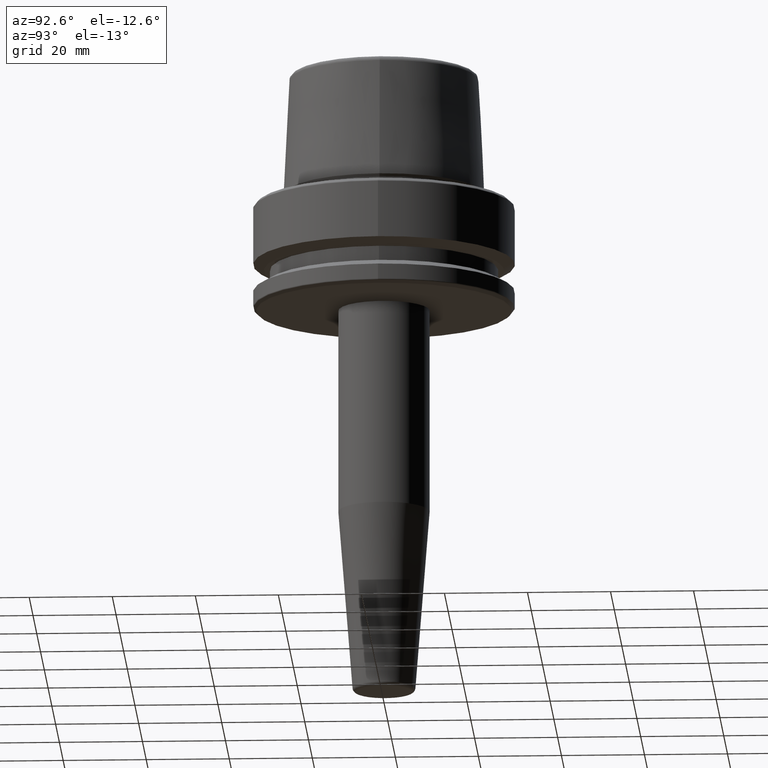
[diagram: clean part render]
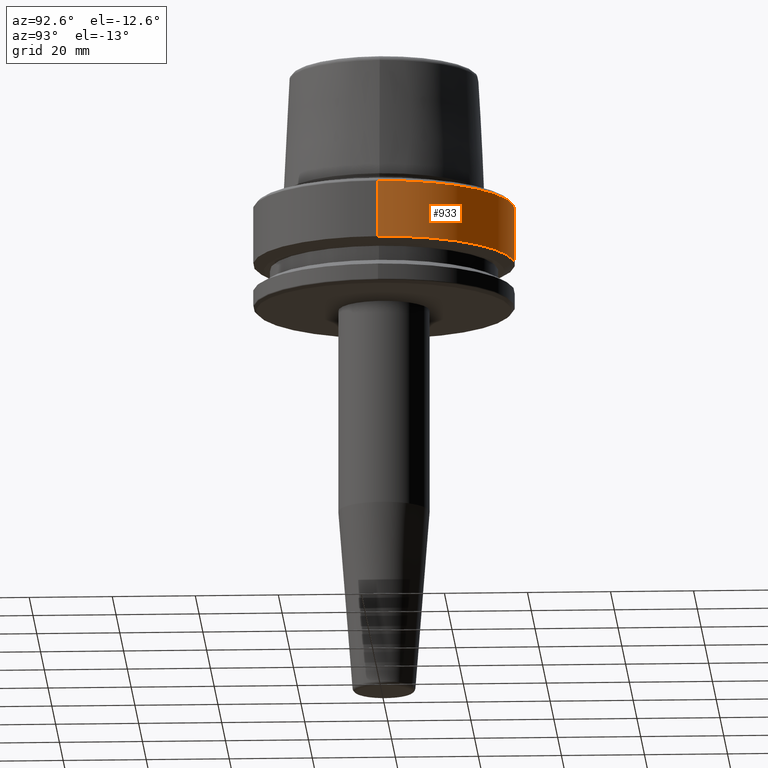
[diagram: same view with one face highlighted and labeled with its STEP entity id]
A machine part, auxiliary view. The second image highlights one B-rep face of the part: STEP entity #933.
In plain terms, the highlighted cylindrical surface (partial cylindrical patch) has radius 31.5 mm, axis along (-0, -0, 1).
Its self-contained STEP definition (entity closure, byte-faithful):
#53 = LINE ( 'NONE', #975, #1056 ) ;
#64 = ORIENTED_EDGE ( 'NONE', *, *, #943, .T. ) ;
#145 = CIRCLE ( 'NONE', #534, 31.50000000000000000 ) ;
#170 = CARTESIAN_POINT ( 'NONE',  ( -31.50000000000000000, 3.857637417314162700E-015, 78.96908074195309300 ) ) ;
#206 = CARTESIAN_POINT ( 'NONE',  ( 31.50000000000000000, 0.0000000000000000000, -0.9656854249492363700 ) ) ;
#215 = VERTEX_POINT ( 'NONE', #1192 ) ;
#268 = DIRECTION ( 'NONE',  ( -0.0000000000000000000, -0.0000000000000000000, 1.000000000000000000 ) ) ;
#297 = FACE_OUTER_BOUND ( 'NONE', #460, .T. ) ;
#385 = VERTEX_POINT ( 'NONE', #860 ) ;
#441 = CARTESIAN_POINT ( 'NONE',  ( 0.0000000000000000000, 0.0000000000000000000, -0.9656854249492363700 ) ) ;
#460 = EDGE_LOOP ( 'NONE', ( #970, #64, #560, #613 ) ) ;
#465 = DIRECTION ( 'NONE',  ( 1.000000000000000000, 0.0000000000000000000, 0.0000000000000000000 ) ) ;
#494 = CIRCLE ( 'NONE', #1083, 31.50000000000000000 ) ;
#497 = EDGE_CURVE ( 'NONE', #385, #1136, #145, .T. ) ;
#534 = AXIS2_PLACEMENT_3D ( 'NONE', #855, #268, #562 ) ;
#536 = VECTOR ( 'NONE', #659, 1000.000000000000000 ) ;
#542 = DIRECTION ( 'NONE',  ( 1.000000000000000000, 0.0000000000000000000, 0.0000000000000000000 ) ) ;
#560 = ORIENTED_EDGE ( 'NONE', *, *, #810, .F. ) ;
#562 = DIRECTION ( 'NONE',  ( 1.000000000000000000, 0.0000000000000000000, 0.0000000000000000000 ) ) ;
#566 = LINE ( 'NONE', #170, #536 ) ;
#594 = CARTESIAN_POINT ( 'NONE',  ( -31.50000000000000000, 3.857637417314162700E-015, -14.62250092524070100 ) ) ;
#613 = ORIENTED_EDGE ( 'NONE', *, *, #1173, .F. ) ;
#659 = DIRECTION ( 'NONE',  ( -0.0000000000000000000, -0.0000000000000000000, 1.000000000000000000 ) ) ;
#691 = DIRECTION ( 'NONE',  ( -0.0000000000000000000, -0.0000000000000000000, 1.000000000000000000 ) ) ;
#809 = AXIS2_PLACEMENT_3D ( 'NONE', #1039, #1228, #465 ) ;
#810 = EDGE_CURVE ( 'NONE', #1187, #215, #494, .T. ) ;
#855 = CARTESIAN_POINT ( 'NONE',  ( 0.0000000000000000000, 0.0000000000000000000, -14.62250092524070100 ) ) ;
#860 = CARTESIAN_POINT ( 'NONE',  ( 31.50000000000000000, 0.0000000000000000000, -14.62250092524070100 ) ) ;
#933 = ADVANCED_FACE ( 'NONE', ( #297 ), #1046, .T. ) ;
#943 = EDGE_CURVE ( 'NONE', #1136, #215, #566, .T. ) ;
#970 = ORIENTED_EDGE ( 'NONE', *, *, #497, .T. ) ;
#975 = CARTESIAN_POINT ( 'NONE',  ( 31.50000000000000000, 0.0000000000000000000, 78.96908074195309300 ) ) ;
#1039 = CARTESIAN_POINT ( 'NONE',  ( 0.0000000000000000000, 0.0000000000000000000, 78.96908074195309300 ) ) ;
#1046 = CYLINDRICAL_SURFACE ( 'NONE', #809, 31.50000000000000000 ) ;
#1056 = VECTOR ( 'NONE', #691, 1000.000000000000000 ) ;
#1083 = AXIS2_PLACEMENT_3D ( 'NONE', #441, #1112, #542 ) ;
#1112 = DIRECTION ( 'NONE',  ( -0.0000000000000000000, -0.0000000000000000000, 1.000000000000000000 ) ) ;
#1136 = VERTEX_POINT ( 'NONE', #594 ) ;
#1173 = EDGE_CURVE ( 'NONE', #385, #1187, #53, .T. ) ;
#1187 = VERTEX_POINT ( 'NONE', #206 ) ;
#1192 = CARTESIAN_POINT ( 'NONE',  ( -31.50000000000000000, 3.857637417314162700E-015, -0.9656854249492363700 ) ) ;
#1228 = DIRECTION ( 'NONE',  ( -0.0000000000000000000, -0.0000000000000000000, 1.000000000000000000 ) ) ;